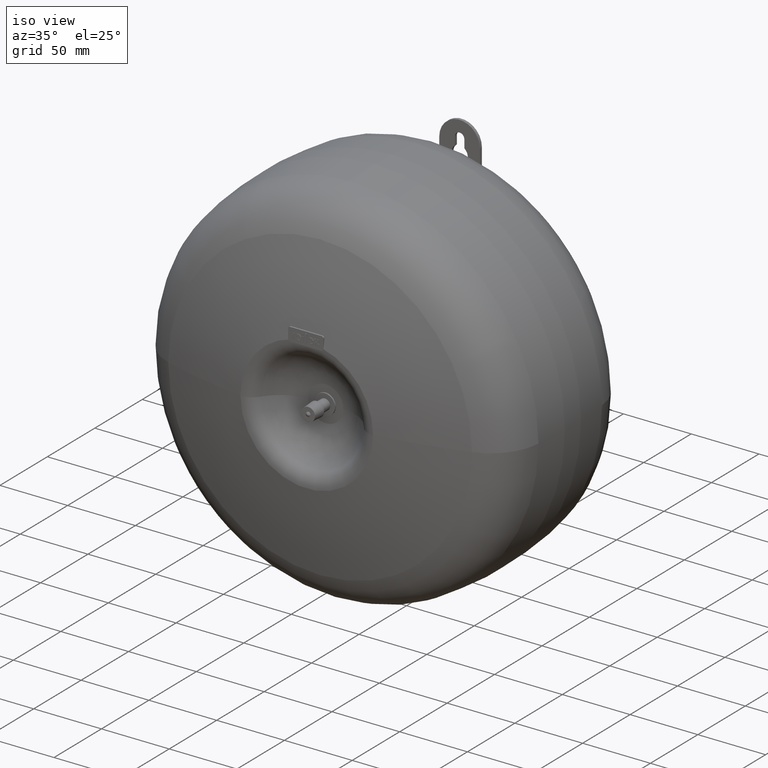
[diagram: clean part render]
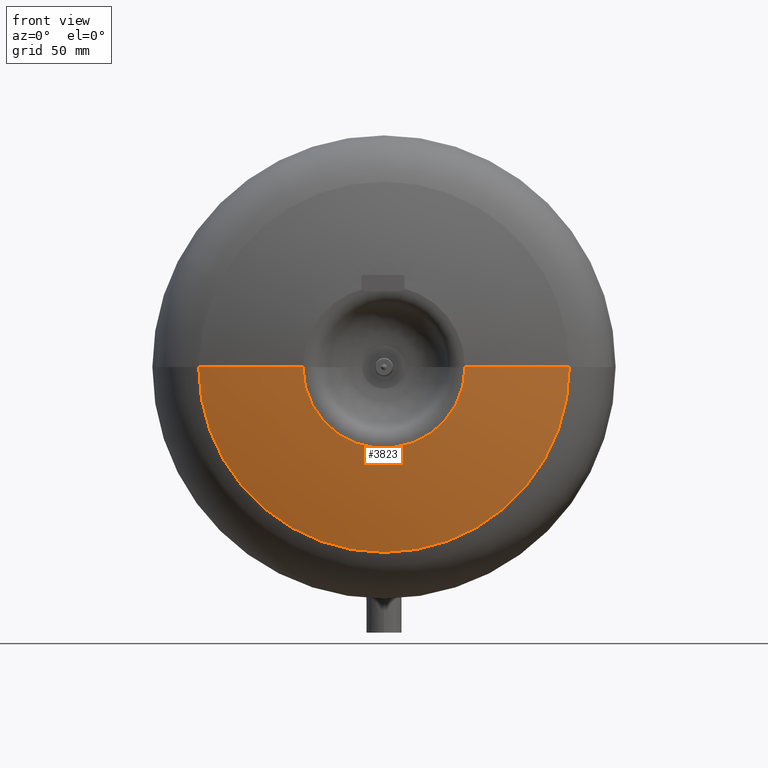
[diagram: tour spotlight — one face highlighted and labeled with its STEP entity id]
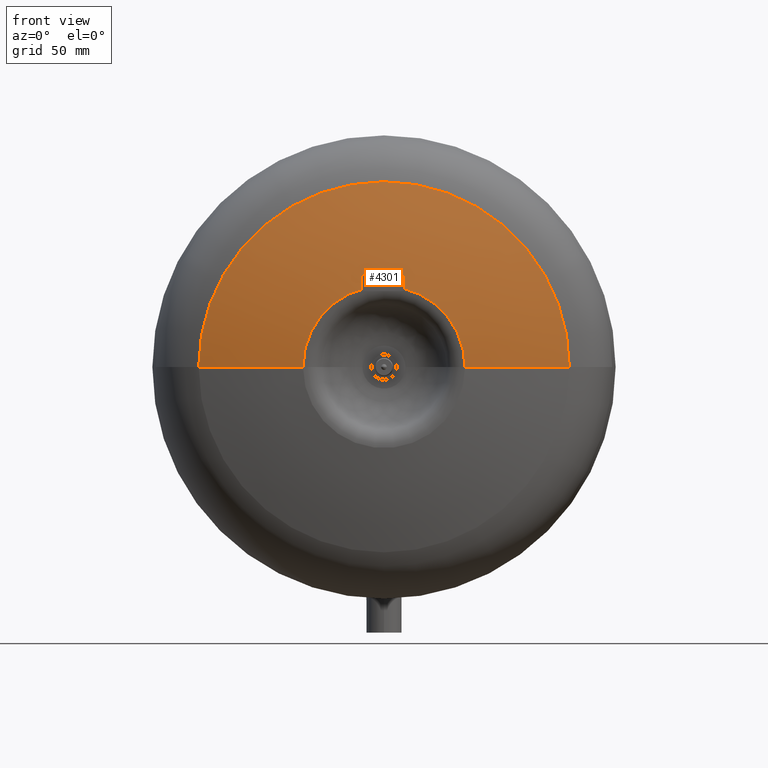
[diagram: tour spotlight — one face highlighted and labeled with its STEP entity id]
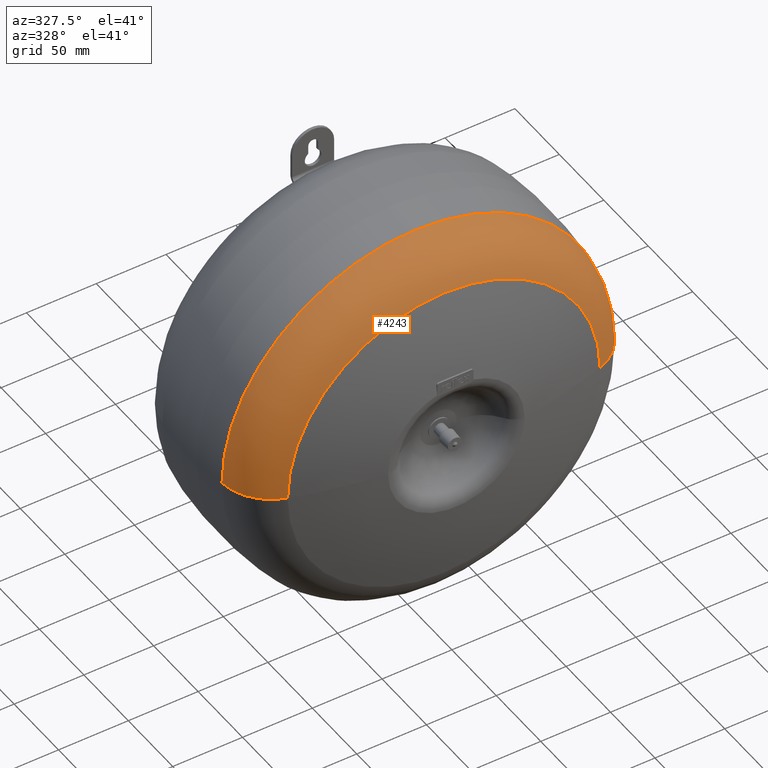
[diagram: tour spotlight — one face highlighted and labeled with its STEP entity id]
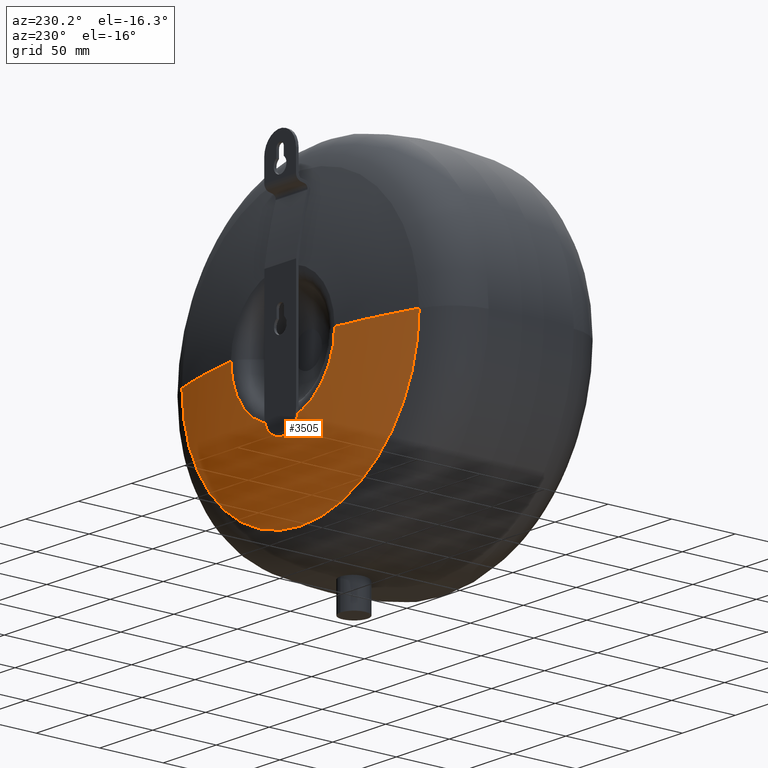
[diagram: tour spotlight — one face highlighted and labeled with its STEP entity id]
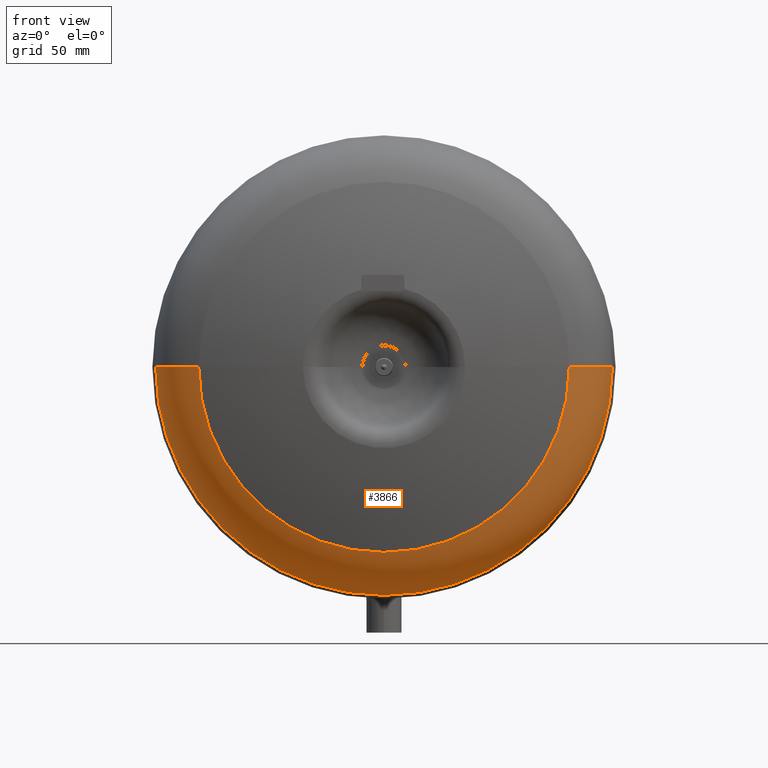
[diagram: tour spotlight — one face highlighted and labeled with its STEP entity id]
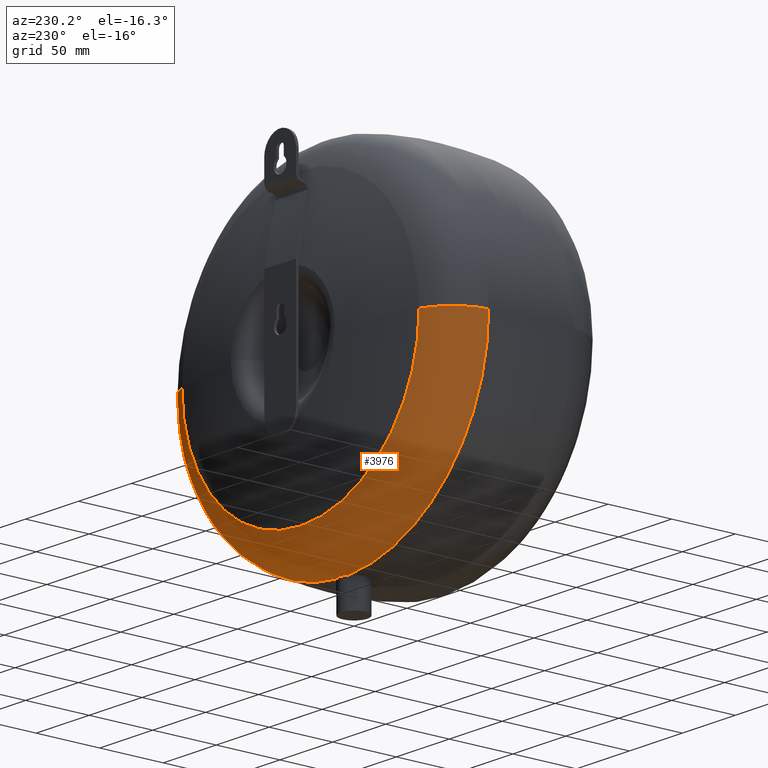
[diagram: tour spotlight — one face highlighted and labeled with its STEP entity id]
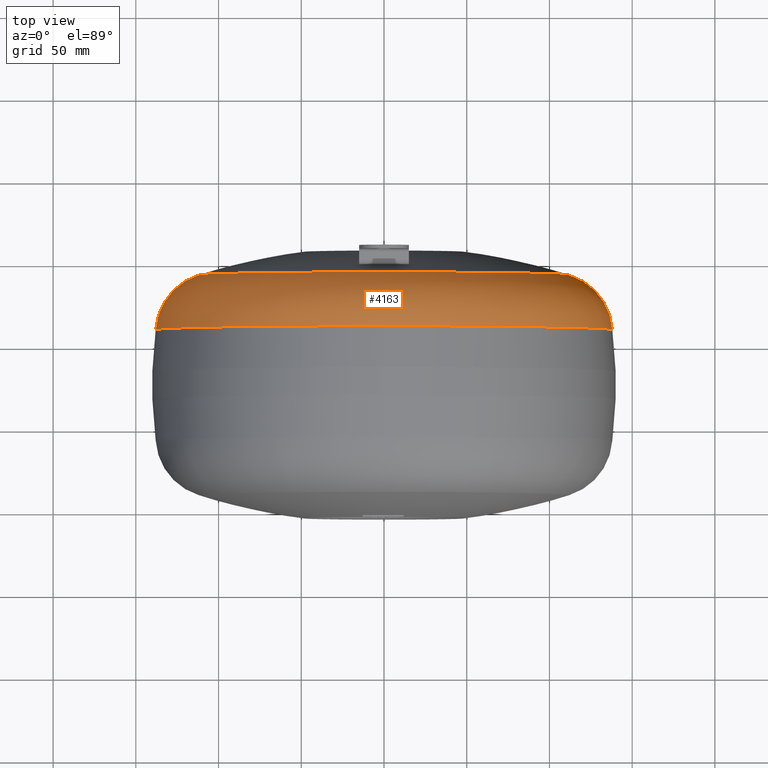
[diagram: tour spotlight — one face highlighted and labeled with its STEP entity id]
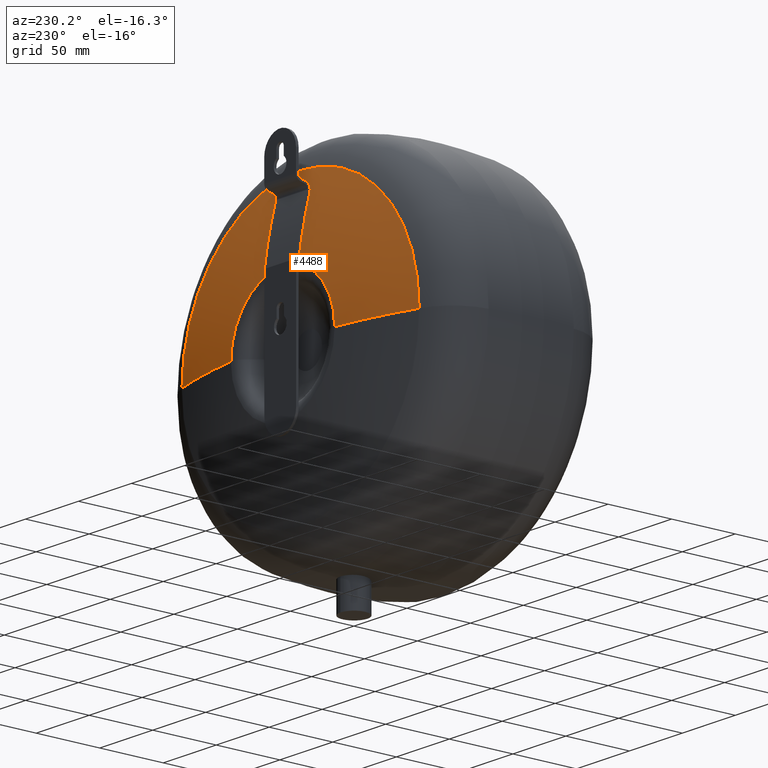
[diagram: tour spotlight — one face highlighted and labeled with its STEP entity id]
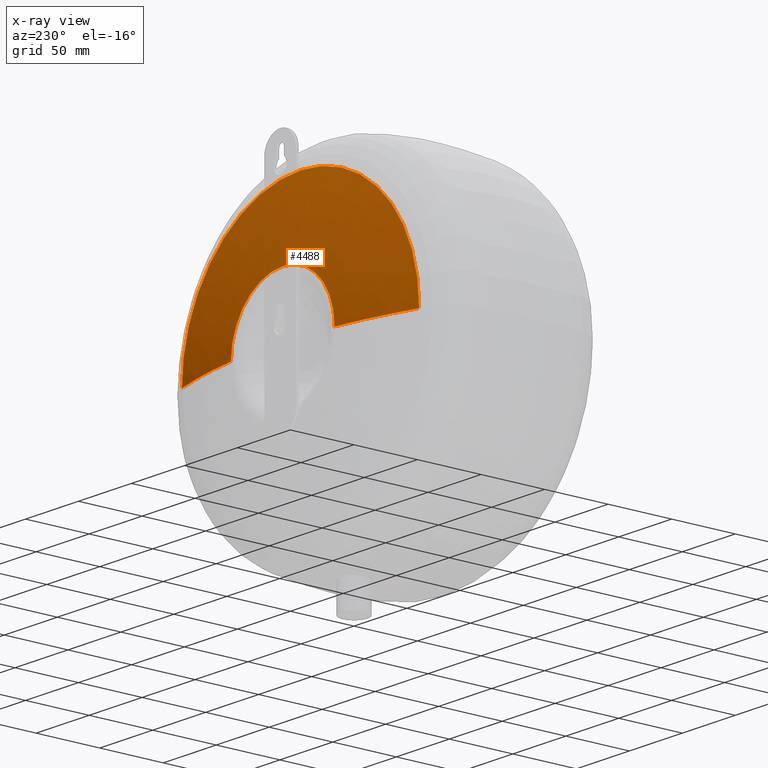
[diagram: x-ray of the same camera — body ghosted, this tour face saturated]
A machine part: a face-by-face anatomy tour. The part has 143 B-rep faces; the first image is the clean iso view, then the 8 largest visible faces are spotlighted one at a time (largest first), each with its STEP entity span.

Face 1 — front view, entity #3823. In plain terms, the highlighted face is a freeform B-spline surface patch.
Definition (entity closure, byte-faithful):
#3725=CARTESIAN_POINT('',(49.000000000000085,-105.0,160.50000000000006));
#3726=VERTEX_POINT('',#3725);
#3741=CARTESIAN_POINT('',(-49.000000000000099,-104.99999999999997,160.50000000000006));
#3742=VERTEX_POINT('',#3741);
#3750=CARTESIAN_POINT('',(-7.105427E-015,-104.99999999999997,160.50000000000006));
#3751=DIRECTION('',(0.0,-1.0,0.0));
#3752=DIRECTION('',(0.0,0.0,1.0));
#3753=AXIS2_PLACEMENT_3D('',#3750,#3751,#3752);
#3754=CIRCLE('',#3753,49.000000000000092);
#3755=EDGE_CURVE('',#3742,#3726,#3754,.T.);
#3760=CARTESIAN_POINT('',(-112.00000000000004,-90.999999999999886,160.50000000000009));
#3761=CARTESIAN_POINT('',(-81.112818320128028,-100.7576824405777,160.50000000000006));
#3762=CARTESIAN_POINT('',(-48.999999999999275,-105.0,160.50000000000006));
#3763=CARTESIAN_POINT('',(-111.99999999999999,-90.999999999999886,272.50000000000006));
#3764=CARTESIAN_POINT('',(-81.112818320128014,-100.7576824405777,241.61281832012804));
#3765=CARTESIAN_POINT('',(-48.999999999999254,-105.0,209.49999999999932));
#3766=CARTESIAN_POINT('',(2.045657E-014,-90.999999999999886,272.50000000000011));
#3767=CARTESIAN_POINT('',(-9.757536E-015,-100.7576824405777,241.61281832012807));
#3768=CARTESIAN_POINT('',(-1.053681E-014,-105.0,209.49999999999932));
#3769=CARTESIAN_POINT('',(112.00000000000001,-90.999999999999886,272.50000000000006));
#3770=CARTESIAN_POINT('',(81.112818320127985,-100.7576824405777,241.61281832012804));
#3771=CARTESIAN_POINT('',(48.999999999999247,-105.0,209.49999999999932));
#3772=CARTESIAN_POINT('',(112.00000000000001,-90.999999999999886,160.50000000000003));
#3773=CARTESIAN_POINT('',(81.112818320128,-100.7576824405777,160.50000000000006));
#3774=CARTESIAN_POINT('',(48.999999999999261,-105.0,160.50000000000006));
#3775=CARTESIAN_POINT('',(111.99999999999996,-90.999999999999886,48.500000000000028));
#3776=CARTESIAN_POINT('',(81.112818320127985,-100.7576824405777,79.387181679872057));
#3777=CARTESIAN_POINT('',(48.999999999999247,-105.0,111.5000000000008));
#3778=CARTESIAN_POINT('',(-3.638685E-014,-90.999999999999886,48.500000000000028));
#3779=CARTESIAN_POINT('',(-9.757536E-015,-100.7576824405777,79.387181679872043));
#3780=CARTESIAN_POINT('',(-1.053681E-014,-105.0,111.5000000000008));
#3781=CARTESIAN_POINT('',(-112.00000000000003,-90.999999999999886,48.500000000000085));
#3782=CARTESIAN_POINT('',(-81.112818320128014,-100.7576824405777,79.387181679872057));
#3783=CARTESIAN_POINT('',(-48.999999999999254,-105.0,111.5000000000008));
#3784=CARTESIAN_POINT('',(-112.00000000000004,-90.999999999999886,160.50000000000009));
#3785=CARTESIAN_POINT('',(-81.112818320128028,-100.7576824405777,160.50000000000006));
#3786=CARTESIAN_POINT('',(-48.999999999999275,-105.0,160.50000000000006));
#3794=(BOUNDED_SURFACE()B_SPLINE_SURFACE(2,2,((#3760,#3763,#3766,#3769,#3772,#3775,#3778,#3781,#3784),(#3761,#3764,#3767,#3770,#3773,#3776,#3779,#3782,#3785),(#3762,#3765,#3768,#3771,#3774,#3777,#3780,#3783,#3786)),.UNSPECIFIED.,.F.,.T.,.U.)B_SPLINE_SURFACE_WITH_KNOTS((3,3),(3,2,2,2,3),(1.264804539362947,1.439450222478965),(0.0,1.570796326794897,3.141592653589793,4.71238898038469,6.283185307179586),.UNSPECIFIED.)GEOMETRIC_REPRESENTATION_ITEM()RATIONAL_B_SPLINE_SURFACE(((1.0,0.707106781186548,1.0,0.707106781186548,1.0,0.707106781186548,1.0,0.707106781186548,1.0),(0.99618978275852,0.704412550737303,0.99618978275852,0.704412550737303,0.99618978275852,0.704412550737303,0.99618978275852,0.704412550737303,0.99618978275852),(1.0,0.707106781186548,1.0,0.707106781186548,1.0,0.707106781186548,1.0,0.707106781186548,1.0)))REPRESENTATION_ITEM('')SURFACE());
#3795=CARTESIAN_POINT('',(112.00000000000009,-90.999999999999986,160.50000000000006));
#3796=VERTEX_POINT('',#3795);
#3797=CARTESIAN_POINT('',(0.541554910213108,261.81300290404124,160.50000000000006));
#3798=DIRECTION('',(0.0,0.0,1.0));
#3799=DIRECTION('',(1.0,0.0,0.0));
#3800=AXIS2_PLACEMENT_3D('',#3797,#3798,#3799);
#3801=CIRCLE('',#3800,370.0);
#3802=EDGE_CURVE('',#3726,#3796,#3801,.T.);
#3803=ORIENTED_EDGE('',*,*,#3802,.F.);
#3804=ORIENTED_EDGE('',*,*,#3755,.F.);
#3805=CARTESIAN_POINT('',(-112.00000000000011,-90.999999999999957,160.50000000000006));
#3806=VERTEX_POINT('',#3805);
#3807=CARTESIAN_POINT('',(-0.541554910212994,261.81300290404124,160.50000000000006));
#3808=DIRECTION('',(0.0,0.0,-1.0));
#3809=DIRECTION('',(-1.0,0.0,0.0));
#3810=AXIS2_PLACEMENT_3D('',#3807,#3808,#3809);
#3811=CIRCLE('',#3810,370.0);
#3812=EDGE_CURVE('',#3742,#3806,#3811,.T.);
#3813=ORIENTED_EDGE('',*,*,#3812,.T.);
#3814=CARTESIAN_POINT('',(-7.105427E-015,-90.999999999999972,160.50000000000006));
#3815=DIRECTION('',(0.0,-1.0,0.0));
#3816=DIRECTION('',(0.0,0.0,1.0));
#3817=AXIS2_PLACEMENT_3D('',#3814,#3815,#3816);
#3818=CIRCLE('',#3817,112.0000000000001);
#3819=EDGE_CURVE('',#3806,#3796,#3818,.T.);
#3820=ORIENTED_EDGE('',*,*,#3819,.T.);
#3821=EDGE_LOOP('',(#3803,#3804,#3813,#3820));
#3822=FACE_OUTER_BOUND('',#3821,.T.);
#3823=ADVANCED_FACE('',(#3822),#3794,.T.);

Face 2 — front view, entity #4301. In plain terms, the highlighted face is a freeform B-spline surface patch.
Definition (entity closure, byte-faithful):
#3725=CARTESIAN_POINT('',(49.000000000000085,-105.0,160.50000000000006));
#3726=VERTEX_POINT('',#3725);
#3741=CARTESIAN_POINT('',(-49.000000000000099,-104.99999999999997,160.50000000000006));
#3742=VERTEX_POINT('',#3741);
#3795=CARTESIAN_POINT('',(112.00000000000009,-90.999999999999986,160.50000000000006));
#3796=VERTEX_POINT('',#3795);
#3797=CARTESIAN_POINT('',(0.541554910213108,261.81300290404124,160.50000000000006));
#3798=DIRECTION('',(0.0,0.0,1.0));
#3799=DIRECTION('',(1.0,0.0,0.0));
#3800=AXIS2_PLACEMENT_3D('',#3797,#3798,#3799);
#3801=CIRCLE('',#3800,370.0);
#3802=EDGE_CURVE('',#3726,#3796,#3801,.T.);
#3805=CARTESIAN_POINT('',(-112.00000000000011,-90.999999999999957,160.50000000000006));
#3806=VERTEX_POINT('',#3805);
#3807=CARTESIAN_POINT('',(-0.541554910212994,261.81300290404124,160.50000000000006));
#3808=DIRECTION('',(0.0,0.0,-1.0));
#3809=DIRECTION('',(-1.0,0.0,0.0));
#3810=AXIS2_PLACEMENT_3D('',#3807,#3808,#3809);
#3811=CIRCLE('',#3810,370.0);
#3812=EDGE_CURVE('',#3742,#3806,#3811,.T.);
#4225=CARTESIAN_POINT('',(0.0,-90.999999999999972,272.50000000000017));
#4226=VERTEX_POINT('',#4225);
#4227=CARTESIAN_POINT('',(-7.105427E-015,-90.999999999999972,160.50000000000006));
#4228=DIRECTION('',(0.0,-1.0,0.0));
#4229=DIRECTION('',(0.0,0.0,1.0));
#4230=AXIS2_PLACEMENT_3D('',#4227,#4228,#4229);
#4231=CIRCLE('',#4230,112.0000000000001);
#4232=EDGE_CURVE('',#4226,#3806,#4231,.T.);
#4234=CARTESIAN_POINT('',(-7.105427E-015,-90.999999999999972,160.50000000000006));
#4235=DIRECTION('',(0.0,-1.0,0.0));
#4236=DIRECTION('',(0.0,0.0,1.0));
#4237=AXIS2_PLACEMENT_3D('',#4234,#4235,#4236);
#4238=CIRCLE('',#4237,112.0000000000001);
#4239=EDGE_CURVE('',#3796,#4226,#4238,.T.);
#4244=CARTESIAN_POINT('',(-112.00000000000004,-90.999999999999886,160.50000000000009));
#4245=CARTESIAN_POINT('',(-81.112818320128028,-100.7576824405777,160.50000000000006));
#4246=CARTESIAN_POINT('',(-48.999999999999275,-105.0,160.50000000000006));
#4247=CARTESIAN_POINT('',(-111.99999999999999,-90.999999999999886,272.50000000000006));
#4248=CARTESIAN_POINT('',(-81.112818320128014,-100.7576824405777,241.61281832012804));
#4249=CARTESIAN_POINT('',(-48.999999999999254,-105.0,209.49999999999932));
#4250=CARTESIAN_POINT('',(2.045657E-014,-90.999999999999886,272.50000000000011));
#4251=CARTESIAN_POINT('',(-9.757536E-015,-100.7576824405777,241.61281832012807));
#4252=CARTESIAN_POINT('',(-1.053681E-014,-105.0,209.49999999999932));
#4253=CARTESIAN_POINT('',(112.00000000000001,-90.999999999999886,272.50000000000006));
#4254=CARTESIAN_POINT('',(81.112818320127985,-100.7576824405777,241.61281832012804));
#4255=CARTESIAN_POINT('',(48.999999999999247,-105.0,209.49999999999932));
#4256=CARTESIAN_POINT('',(112.00000000000001,-90.999999999999886,160.50000000000003));
#4257=CARTESIAN_POINT('',(81.112818320128,-100.7576824405777,160.50000000000006));
#4258=CARTESIAN_POINT('',(48.999999999999261,-105.0,160.50000000000006));
#4259=CARTESIAN_POINT('',(111.99999999999996,-90.999999999999886,48.500000000000028));
#4260=CARTESIAN_POINT('',(81.112818320127985,-100.7576824405777,79.387181679872057));
#4261=CARTESIAN_POINT('',(48.999999999999247,-105.0,111.5000000000008));
#4262=CARTESIAN_POINT('',(-3.638685E-014,-90.999999999999886,48.500000000000028));
#4263=CARTESIAN_POINT('',(-9.757536E-015,-100.7576824405777,79.387181679872043));
#4264=CARTESIAN_POINT('',(-1.053681E-014,-105.0,111.5000000000008));
#4265=CARTESIAN_POINT('',(-112.00000000000003,-90.999999999999886,48.500000000000085));
#4266=CARTESIAN_POINT('',(-81.112818320128014,-100.7576824405777,79.387181679872057));
#4267=CARTESIAN_POINT('',(-48.999999999999254,-105.0,111.5000000000008));
#4268=CARTESIAN_POINT('',(-112.00000000000004,-90.999999999999886,160.50000000000009));
#4269=CARTESIAN_POINT('',(-81.112818320128028,-100.7576824405777,160.50000000000006));
#4270=CARTESIAN_POINT('',(-48.999999999999275,-105.0,160.50000000000006));
#4278=(BOUNDED_SURFACE()B_SPLINE_SURFACE(2,2,((#4244,#4247,#4250,#4253,#4256,#4259,#4262,#4265,#4268),(#4245,#4248,#4251,#4254,#4257,#4260,#4263,#4266,#4269),(#4246,#4249,#4252,#4255,#4258,#4261,#4264,#4267,#4270)),.UNSPECIFIED.,.F.,.T.,.U.)B_SPLINE_SURFACE_WITH_KNOTS((3,3),(3,2,2,2,3),(1.264804539362947,1.439450222478965),(0.0,1.570796326794897,3.141592653589793,4.71238898038469,6.283185307179586),.UNSPECIFIED.)GEOMETRIC_REPRESENTATION_ITEM()RATIONAL_B_SPLINE_SURFACE(((1.0,0.707106781186548,1.0,0.707106781186548,1.0,0.707106781186548,1.0,0.707106781186548,1.0),(0.99618978275852,0.704412550737303,0.99618978275852,0.704412550737303,0.99618978275852,0.704412550737303,0.99618978275852,0.704412550737303,0.99618978275852),(1.0,0.707106781186548,1.0,0.707106781186548,1.0,0.707106781186548,1.0,0.707106781186548,1.0)))REPRESENTATION_ITEM('')SURFACE());
#4279=ORIENTED_EDGE('',*,*,#3802,.T.);
#4280=ORIENTED_EDGE('',*,*,#4239,.T.);
#4281=ORIENTED_EDGE('',*,*,#4232,.T.);
#4282=ORIENTED_EDGE('',*,*,#3812,.F.);
#4283=CARTESIAN_POINT('',(-7.105427E-015,-104.99999999999997,209.50000000000014));
#4284=VERTEX_POINT('',#4283);
#4285=CARTESIAN_POINT('',(-7.105427E-015,-104.99999999999997,160.50000000000006));
#4286=DIRECTION('',(0.0,-1.0,0.0));
#4287=DIRECTION('',(0.0,0.0,1.0));
#4288=AXIS2_PLACEMENT_3D('',#4285,#4286,#4287);
#4289=CIRCLE('',#4288,49.000000000000092);
#4290=EDGE_CURVE('',#4284,#3742,#4289,.T.);
#4291=ORIENTED_EDGE('',*,*,#4290,.F.);
#4292=CARTESIAN_POINT('',(-7.105427E-015,-104.99999999999997,160.50000000000006));
#4293=DIRECTION('',(0.0,-1.0,0.0));
#4294=DIRECTION('',(0.0,0.0,1.0));
#4295=AXIS2_PLACEMENT_3D('',#4292,#4293,#4294);
#4296=CIRCLE('',#4295,49.000000000000092);
#4297=EDGE_CURVE('',#3726,#4284,#4296,.T.);
#4298=ORIENTED_EDGE('',*,*,#4297,.F.);
#4299=EDGE_LOOP('',(#4279,#4280,#4281,#4282,#4291,#4298));
#4300=FACE_OUTER_BOUND('',#4299,.T.);
#4301=ADVANCED_FACE('',(#4300),#4278,.T.);

Face 3 — auxiliary view, entity #4243. In plain terms, the highlighted toroidal blend (fillet) surface has major radius 101.075 mm and minor (blend) radius 37 mm.
Definition (entity closure, byte-faithful):
#3795=CARTESIAN_POINT('',(112.00000000000009,-90.999999999999986,160.50000000000006));
#3796=VERTEX_POINT('',#3795);
#3805=CARTESIAN_POINT('',(-112.00000000000011,-90.999999999999957,160.50000000000006));
#3806=VERTEX_POINT('',#3805);
#3829=CARTESIAN_POINT('',(138.00000000000011,-58.000000000000007,160.50000000000006));
#3830=VERTEX_POINT('',#3829);
#3831=CARTESIAN_POINT('',(101.07471793660466,-55.649777768233882,160.50000000000006));
#3832=DIRECTION('',(0.0,0.0,1.0));
#3833=DIRECTION('',(1.0,0.0,0.0));
#3834=AXIS2_PLACEMENT_3D('',#3831,#3832,#3833);
#3835=CIRCLE('',#3834,37.000000000000007);
#3836=EDGE_CURVE('',#3796,#3830,#3835,.T.);
#3839=CARTESIAN_POINT('',(-138.00000000000011,-57.999999999999936,160.50000000000006));
#3840=VERTEX_POINT('',#3839);
#3841=CARTESIAN_POINT('',(-101.07471793660466,-55.649777768233839,160.50000000000006));
#3842=DIRECTION('',(0.0,0.0,-1.0));
#3843=DIRECTION('',(-1.0,0.0,0.0));
#3844=AXIS2_PLACEMENT_3D('',#3841,#3842,#3843);
#3845=CIRCLE('',#3844,37.000000000000007);
#3846=EDGE_CURVE('',#3806,#3840,#3845,.T.);
#3872=CARTESIAN_POINT('',(7.105427E-015,-57.999999999999972,298.50000000000017));
#3873=VERTEX_POINT('',#3872);
#3880=CARTESIAN_POINT('',(0.0,-57.999999999999972,160.50000000000006));
#3881=DIRECTION('',(0.0,-1.0,0.0));
#3882=DIRECTION('',(0.0,0.0,1.0));
#3883=AXIS2_PLACEMENT_3D('',#3880,#3881,#3882);
#3884=CIRCLE('',#3883,138.00000000000011);
#3885=EDGE_CURVE('',#3830,#3873,#3884,.T.);
#4206=CARTESIAN_POINT('',(0.0,-57.999999999999972,160.50000000000006));
#4207=DIRECTION('',(0.0,-1.0,0.0));
#4208=DIRECTION('',(0.0,0.0,1.0));
#4209=AXIS2_PLACEMENT_3D('',#4206,#4207,#4208);
#4210=CIRCLE('',#4209,138.00000000000011);
#4211=EDGE_CURVE('',#3873,#3840,#4210,.T.);
#4216=CARTESIAN_POINT('',(0.0,-55.649777768233861,160.50000000000006));
#4217=DIRECTION('',(-1.836910E-016,-1.0,0.0));
#4218=DIRECTION('',(1.0,0.0,0.0));
#4219=AXIS2_PLACEMENT_3D('',#4216,#4217,#4218);
#4220=TOROIDAL_SURFACE('',#4219,101.07471793660466,37.000000000000007);
#4221=ORIENTED_EDGE('',*,*,#3836,.T.);
#4222=ORIENTED_EDGE('',*,*,#3885,.T.);
#4223=ORIENTED_EDGE('',*,*,#4211,.T.);
#4224=ORIENTED_EDGE('',*,*,#3846,.F.);
#4225=CARTESIAN_POINT('',(0.0,-90.999999999999972,272.50000000000017));
#4226=VERTEX_POINT('',#4225);
#4227=CARTESIAN_POINT('',(-7.105427E-015,-90.999999999999972,160.50000000000006));
#4228=DIRECTION('',(0.0,-1.0,0.0));
#4229=DIRECTION('',(0.0,0.0,1.0));
#4230=AXIS2_PLACEMENT_3D('',#4227,#4228,#4229);
#4231=CIRCLE('',#4230,112.0000000000001);
#4232=EDGE_CURVE('',#4226,#3806,#4231,.T.);
#4233=ORIENTED_EDGE('',*,*,#4232,.F.);
#4234=CARTESIAN_POINT('',(-7.105427E-015,-90.999999999999972,160.50000000000006));
#4235=DIRECTION('',(0.0,-1.0,0.0));
#4236=DIRECTION('',(0.0,0.0,1.0));
#4237=AXIS2_PLACEMENT_3D('',#4234,#4235,#4236);
#4238=CIRCLE('',#4237,112.0000000000001);
#4239=EDGE_CURVE('',#3796,#4226,#4238,.T.);
#4240=ORIENTED_EDGE('',*,*,#4239,.F.);
#4241=EDGE_LOOP('',(#4221,#4222,#4223,#4224,#4233,#4240));
#4242=FACE_OUTER_BOUND('',#4241,.T.);
#4243=ADVANCED_FACE('',(#4242),#4220,.T.);

Face 4 — auxiliary view, entity #3505. In plain terms, the highlighted face is a freeform B-spline surface patch.
Definition (entity closure, byte-faithful):
#3432=CARTESIAN_POINT('',(-48.999999999999275,56.000000000000057,160.50000000000006));
#3433=CARTESIAN_POINT('',(-81.112818320128198,51.757682440577724,160.50000000000006));
#3434=CARTESIAN_POINT('',(-112.00000000000004,41.999999999999943,160.50000000000009));
#3435=CARTESIAN_POINT('',(-48.999999999999254,56.000000000000057,209.49999999999935));
#3436=CARTESIAN_POINT('',(-81.112818320128184,51.757682440577724,241.61281832012827));
#3437=CARTESIAN_POINT('',(-111.99999999999999,41.999999999999943,272.50000000000011));
#3438=CARTESIAN_POINT('',(2.474767E-014,56.000000000000057,209.49999999999935));
#3439=CARTESIAN_POINT('',(2.396839E-014,51.757682440577753,241.61281832012827));
#3440=CARTESIAN_POINT('',(5.059770E-014,41.999999999999943,272.50000000000011));
#3441=CARTESIAN_POINT('',(48.999999999999304,56.000000000000057,209.49999999999935));
#3442=CARTESIAN_POINT('',(81.112818320128241,51.757682440577781,241.61281832012827));
#3443=CARTESIAN_POINT('',(112.0000000000001,41.999999999999943,272.50000000000011));
#3444=CARTESIAN_POINT('',(48.999999999999318,56.000000000000057,160.50000000000006));
#3445=CARTESIAN_POINT('',(81.112818320128255,51.757682440577781,160.50000000000006));
#3446=CARTESIAN_POINT('',(112.0000000000001,41.999999999999943,160.50000000000003));
#3447=CARTESIAN_POINT('',(48.999999999999304,56.000000000000057,111.50000000000077));
#3448=CARTESIAN_POINT('',(81.112818320128241,51.757682440577781,79.387181679871844));
#3449=CARTESIAN_POINT('',(112.00000000000003,41.999999999999943,48.499999999999986));
#3450=CARTESIAN_POINT('',(2.474767E-014,56.000000000000057,111.50000000000077));
#3451=CARTESIAN_POINT('',(2.396839E-014,51.757682440577753,79.38718167987183));
#3452=CARTESIAN_POINT('',(-6.245717E-015,41.999999999999943,48.499999999999986));
#3453=CARTESIAN_POINT('',(-48.999999999999254,56.000000000000057,111.50000000000077));
#3454=CARTESIAN_POINT('',(-81.112818320128184,51.757682440577724,79.387181679871844));
#3455=CARTESIAN_POINT('',(-112.00000000000003,41.999999999999943,48.50000000000005));
#3456=CARTESIAN_POINT('',(-48.999999999999275,56.000000000000057,160.50000000000006));
#3457=CARTESIAN_POINT('',(-81.112818320128198,51.757682440577724,160.50000000000006));
#3458=CARTESIAN_POINT('',(-112.00000000000004,41.999999999999943,160.50000000000009));
#3466=(BOUNDED_SURFACE()B_SPLINE_SURFACE(2,2,((#3432,#3435,#3438,#3441,#3444,#3447,#3450,#3453,#3456),(#3433,#3436,#3439,#3442,#3445,#3448,#3451,#3454,#3457),(#3434,#3437,#3440,#3443,#3446,#3449,#3452,#3455,#3458)),.UNSPECIFIED.,.F.,.T.,.U.)B_SPLINE_SURFACE_WITH_KNOTS((3,3),(3,2,2,2,3),(-1.439450222478965,-1.264804539362947),(0.0,1.570796326794897,3.141592653589793,4.71238898038469,6.283185307179586),.UNSPECIFIED.)GEOMETRIC_REPRESENTATION_ITEM()RATIONAL_B_SPLINE_SURFACE(((1.0,0.707106781186548,1.0,0.707106781186548,1.0,0.707106781186548,1.0,0.707106781186548,1.0),(0.996189782758514,0.704412550737299,0.996189782758514,0.704412550737299,0.996189782758514,0.704412550737299,0.996189782758514,0.704412550737299,0.996189782758514),(1.0,0.707106781186548,1.0,0.707106781186548,1.0,0.707106781186548,1.0,0.707106781186548,1.0)))REPRESENTATION_ITEM('')SURFACE());
#3467=CARTESIAN_POINT('',(112.00000000000003,42.0,160.50000000000006));
#3468=VERTEX_POINT('',#3467);
#3469=CARTESIAN_POINT('',(49.000000000000021,56.000000000000021,160.50000000000006));
#3470=VERTEX_POINT('',#3469);
#3471=CARTESIAN_POINT('',(0.541554910213026,-310.81300290404118,160.50000000000006));
#3472=DIRECTION('',(0.0,0.0,1.0));
#3473=DIRECTION('',(1.0,0.0,0.0));
#3474=AXIS2_PLACEMENT_3D('',#3471,#3472,#3473);
#3475=CIRCLE('',#3474,370.0);
#3476=EDGE_CURVE('',#3468,#3470,#3475,.T.);
#3477=ORIENTED_EDGE('',*,*,#3476,.F.);
#3478=CARTESIAN_POINT('',(-111.99999999999997,42.000000000000057,160.50000000000006));
#3479=VERTEX_POINT('',#3478);
#3480=CARTESIAN_POINT('',(2.131628E-014,42.000000000000028,160.50000000000006));
#3481=DIRECTION('',(0.0,-1.0,0.0));
#3482=DIRECTION('',(0.0,0.0,1.0));
#3483=AXIS2_PLACEMENT_3D('',#3480,#3481,#3482);
#3484=CIRCLE('',#3483,112.0);
#3485=EDGE_CURVE('',#3479,#3468,#3484,.T.);
#3486=ORIENTED_EDGE('',*,*,#3485,.F.);
#3487=CARTESIAN_POINT('',(-48.999999999999979,56.000000000000036,160.50000000000006));
#3488=VERTEX_POINT('',#3487);
#3489=CARTESIAN_POINT('',(-0.541554910213112,-310.81300290404118,160.50000000000006));
#3490=DIRECTION('',(0.0,0.0,-1.0));
#3491=DIRECTION('',(-1.0,0.0,0.0));
#3492=AXIS2_PLACEMENT_3D('',#3489,#3490,#3491);
#3493=CIRCLE('',#3492,370.0);
#3494=EDGE_CURVE('',#3479,#3488,#3493,.T.);
#3495=ORIENTED_EDGE('',*,*,#3494,.T.);
#3496=CARTESIAN_POINT('',(2.131628E-014,56.000000000000028,160.50000000000006));
#3497=DIRECTION('',(0.0,-1.0,0.0));
#3498=DIRECTION('',(0.0,0.0,1.0));
#3499=AXIS2_PLACEMENT_3D('',#3496,#3497,#3498);
#3500=CIRCLE('',#3499,49.0);
#3501=EDGE_CURVE('',#3488,#3470,#3500,.T.);
#3502=ORIENTED_EDGE('',*,*,#3501,.T.);
#3503=EDGE_LOOP('',(#3477,#3486,#3495,#3502));
#3504=FACE_OUTER_BOUND('',#3503,.T.);
#3505=ADVANCED_FACE('',(#3504),#3466,.T.);

Face 5 — front view, entity #3866. In plain terms, the highlighted toroidal blend (fillet) surface has major radius 101.075 mm and minor (blend) radius 37 mm.
Definition (entity closure, byte-faithful):
#3795=CARTESIAN_POINT('',(112.00000000000009,-90.999999999999986,160.50000000000006));
#3796=VERTEX_POINT('',#3795);
#3805=CARTESIAN_POINT('',(-112.00000000000011,-90.999999999999957,160.50000000000006));
#3806=VERTEX_POINT('',#3805);
#3814=CARTESIAN_POINT('',(-7.105427E-015,-90.999999999999972,160.50000000000006));
#3815=DIRECTION('',(0.0,-1.0,0.0));
#3816=DIRECTION('',(0.0,0.0,1.0));
#3817=AXIS2_PLACEMENT_3D('',#3814,#3815,#3816);
#3818=CIRCLE('',#3817,112.0000000000001);
#3819=EDGE_CURVE('',#3806,#3796,#3818,.T.);
#3824=CARTESIAN_POINT('',(0.0,-55.649777768233861,160.50000000000006));
#3825=DIRECTION('',(-1.836910E-016,-1.0,0.0));
#3826=DIRECTION('',(1.0,0.0,0.0));
#3827=AXIS2_PLACEMENT_3D('',#3824,#3825,#3826);
#3828=TOROIDAL_SURFACE('',#3827,101.07471793660466,37.000000000000007);
#3829=CARTESIAN_POINT('',(138.00000000000011,-58.000000000000007,160.50000000000006));
#3830=VERTEX_POINT('',#3829);
#3831=CARTESIAN_POINT('',(101.07471793660466,-55.649777768233882,160.50000000000006));
#3832=DIRECTION('',(0.0,0.0,1.0));
#3833=DIRECTION('',(1.0,0.0,0.0));
#3834=AXIS2_PLACEMENT_3D('',#3831,#3832,#3833);
#3835=CIRCLE('',#3834,37.000000000000007);
#3836=EDGE_CURVE('',#3796,#3830,#3835,.T.);
#3837=ORIENTED_EDGE('',*,*,#3836,.F.);
#3838=ORIENTED_EDGE('',*,*,#3819,.F.);
#3839=CARTESIAN_POINT('',(-138.00000000000011,-57.999999999999936,160.50000000000006));
#3840=VERTEX_POINT('',#3839);
#3841=CARTESIAN_POINT('',(-101.07471793660466,-55.649777768233839,160.50000000000006));
#3842=DIRECTION('',(0.0,0.0,-1.0));
#3843=DIRECTION('',(-1.0,0.0,0.0));
#3844=AXIS2_PLACEMENT_3D('',#3841,#3842,#3843);
#3845=CIRCLE('',#3844,37.000000000000007);
#3846=EDGE_CURVE('',#3806,#3840,#3845,.T.);
#3847=ORIENTED_EDGE('',*,*,#3846,.T.);
#3848=CARTESIAN_POINT('',(6.153647E-015,-57.999999999999972,22.499999999999943));
#3849=VERTEX_POINT('',#3848);
#3850=CARTESIAN_POINT('',(0.0,-57.999999999999972,160.50000000000006));
#3851=DIRECTION('',(0.0,-1.0,0.0));
#3852=DIRECTION('',(0.0,0.0,1.0));
#3853=AXIS2_PLACEMENT_3D('',#3850,#3851,#3852);
#3854=CIRCLE('',#3853,138.00000000000011);
#3855=EDGE_CURVE('',#3840,#3849,#3854,.T.);
#3856=ORIENTED_EDGE('',*,*,#3855,.T.);
#3857=CARTESIAN_POINT('',(0.0,-57.999999999999972,160.50000000000006));
#3858=DIRECTION('',(0.0,-1.0,0.0));
#3859=DIRECTION('',(0.0,0.0,1.0));
#3860=AXIS2_PLACEMENT_3D('',#3857,#3858,#3859);
#3861=CIRCLE('',#3860,138.00000000000011);
#3862=EDGE_CURVE('',#3849,#3830,#3861,.T.);
#3863=ORIENTED_EDGE('',*,*,#3862,.T.);
#3864=EDGE_LOOP('',(#3837,#3838,#3847,#3856,#3863));
#3865=FACE_OUTER_BOUND('',#3864,.T.);
#3866=ADVANCED_FACE('',(#3865),#3828,.T.);

Face 6 — auxiliary view, entity #3976. In plain terms, the highlighted toroidal blend (fillet) surface has major radius 101.075 mm and minor (blend) radius 37 mm.
Definition (entity closure, byte-faithful):
#3467=CARTESIAN_POINT('',(112.00000000000003,42.0,160.50000000000006));
#3468=VERTEX_POINT('',#3467);
#3478=CARTESIAN_POINT('',(-111.99999999999997,42.000000000000057,160.50000000000006));
#3479=VERTEX_POINT('',#3478);
#3480=CARTESIAN_POINT('',(2.131628E-014,42.000000000000028,160.50000000000006));
#3481=DIRECTION('',(0.0,-1.0,0.0));
#3482=DIRECTION('',(0.0,0.0,1.0));
#3483=AXIS2_PLACEMENT_3D('',#3480,#3481,#3482);
#3484=CIRCLE('',#3483,112.0);
#3485=EDGE_CURVE('',#3479,#3468,#3484,.T.);
#3898=CARTESIAN_POINT('',(1.421085E-014,6.649777768233918,160.50000000000006));
#3899=DIRECTION('',(-1.836910E-016,-1.0,0.0));
#3900=DIRECTION('',(1.0,0.0,0.0));
#3901=AXIS2_PLACEMENT_3D('',#3898,#3899,#3900);
#3902=TOROIDAL_SURFACE('',#3901,101.0747179366046,37.0);
#3903=CARTESIAN_POINT('',(138.00000000000006,9.000000000000004,160.50000000000006));
#3904=VERTEX_POINT('',#3903);
#3905=CARTESIAN_POINT('',(101.07471793660461,6.649777768233899,160.50000000000006));
#3906=DIRECTION('',(0.0,0.0,1.0));
#3907=DIRECTION('',(1.0,0.0,0.0));
#3908=AXIS2_PLACEMENT_3D('',#3905,#3906,#3907);
#3909=CIRCLE('',#3908,37.0);
#3910=EDGE_CURVE('',#3904,#3468,#3909,.T.);
#3911=ORIENTED_EDGE('',*,*,#3910,.F.);
#3912=CARTESIAN_POINT('',(5.694075868830304,9.000000000000028,22.617522868204873));
#3913=VERTEX_POINT('',#3912);
#3914=CARTESIAN_POINT('',(1.421085E-014,9.000000000000028,160.50000000000006));
#3915=DIRECTION('',(0.0,-1.0,0.0));
#3916=DIRECTION('',(0.0,0.0,1.0));
#3917=AXIS2_PLACEMENT_3D('',#3914,#3915,#3916);
#3918=CIRCLE('',#3917,138.00000000000006);
#3919=EDGE_CURVE('',#3913,#3904,#3918,.T.);
#3920=ORIENTED_EDGE('',*,*,#3919,.F.);
#3921=CARTESIAN_POINT('',(2.373270E-015,10.65,22.642157915268985));
#3922=VERTEX_POINT('',#3921);
#3923=CARTESIAN_POINT('',(5.69407586883068,9.000000000000028,22.617522868204929));
#3924=CARTESIAN_POINT('',(5.178700288528283,9.326065295020527,22.617010724609401));
#3925=CARTESIAN_POINT('',(4.636258854907617,9.607265092987745,22.619703816705169));
#3926=CARTESIAN_POINT('',(3.476330267134273,10.087332287669824,22.627012364018697));
#3927=CARTESIAN_POINT('',(2.85870500570249,10.279444621007286,22.63168630490938));
#3928=CARTESIAN_POINT('',(1.841075016546462,10.497098627494694,22.637508774831645));
#3929=CARTESIAN_POINT('',(1.450372515722798,10.558175104492278,22.639335130620054));
#3930=CARTESIAN_POINT('',(0.859213180165384,10.617148017907539,22.641130094872665));
#3931=CARTESIAN_POINT('',(0.660736047817522,10.631345517556127,22.641573094125874));
#3932=CARTESIAN_POINT('',(0.339216405065855,10.64530557580062,22.642009985706267));
#3933=CARTESIAN_POINT('',(0.21637289279667,10.648510758338006,22.64211101766611));
#3934=CARTESIAN_POINT('',(0.062334534104284,10.649863184390558,22.642153605275041));
#3935=CARTESIAN_POINT('',(0.031167145428338,10.650000000000002,22.642157915268989));
#3936=CARTESIAN_POINT('',(2.126011E-015,10.650000000000002,22.642157915268989));
#3937=B_SPLINE_CURVE_WITH_KNOTS('',3,(#3923,#3924,#3925,#3926,#3927,#3928,#3929,#3930,#3931,#3932,#3933,#3934,#3935,#3936),.UNSPECIFIED.,.F.,.U.,(4,2,2,2,2,2,4),(-1.202210346474159,-1.019261576626168,-0.825629735467774,-0.707099220300471,-0.647422558150506,-0.610564152621812,-0.60121491298339),.UNSPECIFIED.);
#3938=EDGE_CURVE('',#3913,#3922,#3937,.T.);
#3939=ORIENTED_EDGE('',*,*,#3938,.T.);
#3940=CARTESIAN_POINT('',(-5.694075868830296,9.000000000000028,22.617522868204873));
#3941=VERTEX_POINT('',#3940);
#3942=CARTESIAN_POINT('',(2.126011E-015,10.650000000000002,22.642157915268989));
#3943=CARTESIAN_POINT('',(-0.080471226281663,10.650000000000002,22.642157915268989));
#3944=CARTESIAN_POINT('',(-0.160940830993085,10.649087941876104,22.642129162029857));
#3945=CARTESIAN_POINT('',(-0.384500295253773,10.644019430161592,22.641969793486226));
#3946=CARTESIAN_POINT('',(-0.527526817750946,10.63789008646873,22.641777136826192));
#3947=CARTESIAN_POINT('',(-0.952377164734905,10.611093859117119,22.640944524503055));
#3948=CARTESIAN_POINT('',(-1.233545641887332,10.582093318434403,22.640049249332407));
#3949=CARTESIAN_POINT('',(-2.417834094479908,10.412096425090823,22.635065083696787));
#3950=CARTESIAN_POINT('',(-3.301962917216137,10.166343521618188,22.628012608250117));
#3951=CARTESIAN_POINT('',(-4.68188228413829,9.58351368538473,22.619486230610534));
#3952=CARTESIAN_POINT('',(-5.20041391055743,9.312327627107038,22.617032302062569));
#3953=CARTESIAN_POINT('',(-5.694075868830659,9.000000000000028,22.617522868204929));
#3954=B_SPLINE_CURVE_WITH_KNOTS('',3,(#3942,#3943,#3944,#3945,#3946,#3947,#3948,#3949,#3950,#3951,#3952,#3953),.UNSPECIFIED.,.F.,.U.,(4,2,2,2,2,4),(-0.60121491298339,-0.577075879133311,-0.534138016534265,-0.449382857453434,-0.175250056981459,0.0),.UNSPECIFIED.);
#3955=EDGE_CURVE('',#3922,#3941,#3954,.T.);
#3956=ORIENTED_EDGE('',*,*,#3955,.T.);
#3957=CARTESIAN_POINT('',(-138.00000000000006,9.000000000000053,160.50000000000006));
#3958=VERTEX_POINT('',#3957);
#3959=CARTESIAN_POINT('',(1.421085E-014,9.000000000000028,160.50000000000006));
#3960=DIRECTION('',(0.0,-1.0,0.0));
#3961=DIRECTION('',(0.0,0.0,1.0));
#3962=AXIS2_PLACEMENT_3D('',#3959,#3960,#3961);
#3963=CIRCLE('',#3962,138.00000000000006);
#3964=EDGE_CURVE('',#3958,#3941,#3963,.T.);
#3965=ORIENTED_EDGE('',*,*,#3964,.F.);
#3966=CARTESIAN_POINT('',(-101.07471793660459,6.649777768233936,160.50000000000006));
#3967=DIRECTION('',(0.0,0.0,-1.0));
#3968=DIRECTION('',(-1.0,0.0,0.0));
#3969=AXIS2_PLACEMENT_3D('',#3966,#3967,#3968);
#3970=CIRCLE('',#3969,37.0);
#3971=EDGE_CURVE('',#3958,#3479,#3970,.T.);
#3972=ORIENTED_EDGE('',*,*,#3971,.T.);
#3973=ORIENTED_EDGE('',*,*,#3485,.T.);
#3974=EDGE_LOOP('',(#3911,#3920,#3939,#3956,#3965,#3972,#3973));
#3975=FACE_OUTER_BOUND('',#3974,.T.);
#3976=ADVANCED_FACE('',(#3975),#3902,.T.);

Face 7 — top view, entity #4163. In plain terms, the highlighted toroidal blend (fillet) surface has major radius 101.075 mm and minor (blend) radius 37 mm.
Definition (entity closure, byte-faithful):
#3467=CARTESIAN_POINT('',(112.00000000000003,42.0,160.50000000000006));
#3468=VERTEX_POINT('',#3467);
#3478=CARTESIAN_POINT('',(-111.99999999999997,42.000000000000057,160.50000000000006));
#3479=VERTEX_POINT('',#3478);
#3903=CARTESIAN_POINT('',(138.00000000000006,9.000000000000004,160.50000000000006));
#3904=VERTEX_POINT('',#3903);
#3905=CARTESIAN_POINT('',(101.07471793660461,6.649777768233899,160.50000000000006));
#3906=DIRECTION('',(0.0,0.0,1.0));
#3907=DIRECTION('',(1.0,0.0,0.0));
#3908=AXIS2_PLACEMENT_3D('',#3905,#3906,#3907);
#3909=CIRCLE('',#3908,37.0);
#3910=EDGE_CURVE('',#3904,#3468,#3909,.T.);
#3957=CARTESIAN_POINT('',(-138.00000000000006,9.000000000000053,160.50000000000006));
#3958=VERTEX_POINT('',#3957);
#3966=CARTESIAN_POINT('',(-101.07471793660459,6.649777768233936,160.50000000000006));
#3967=DIRECTION('',(0.0,0.0,-1.0));
#3968=DIRECTION('',(-1.0,0.0,0.0));
#3969=AXIS2_PLACEMENT_3D('',#3966,#3967,#3968);
#3970=CIRCLE('',#3969,37.0);
#3971=EDGE_CURVE('',#3958,#3479,#3970,.T.);
#3982=CARTESIAN_POINT('',(1.785135E-014,9.000000000000028,298.50000000000011));
#3983=VERTEX_POINT('',#3982);
#4020=CARTESIAN_POINT('',(1.421085E-014,9.000000000000028,160.50000000000006));
#4021=DIRECTION('',(0.0,-1.0,0.0));
#4022=DIRECTION('',(0.0,0.0,1.0));
#4023=AXIS2_PLACEMENT_3D('',#4020,#4021,#4022);
#4024=CIRCLE('',#4023,138.00000000000006);
#4025=EDGE_CURVE('',#3904,#3983,#4024,.T.);
#4116=CARTESIAN_POINT('',(1.421085E-014,9.000000000000028,160.50000000000006));
#4117=DIRECTION('',(0.0,-1.0,0.0));
#4118=DIRECTION('',(0.0,0.0,1.0));
#4119=AXIS2_PLACEMENT_3D('',#4116,#4117,#4118);
#4120=CIRCLE('',#4119,138.00000000000006);
#4121=EDGE_CURVE('',#3983,#3958,#4120,.T.);
#4136=CARTESIAN_POINT('',(1.421085E-014,6.649777768233918,160.50000000000006));
#4137=DIRECTION('',(-1.836910E-016,-1.0,0.0));
#4138=DIRECTION('',(1.0,0.0,0.0));
#4139=AXIS2_PLACEMENT_3D('',#4136,#4137,#4138);
#4140=TOROIDAL_SURFACE('',#4139,101.0747179366046,37.0);
#4141=ORIENTED_EDGE('',*,*,#3910,.T.);
#4142=CARTESIAN_POINT('',(2.842171E-014,42.000000000000028,272.50000000000006));
#4143=VERTEX_POINT('',#4142);
#4144=CARTESIAN_POINT('',(2.131628E-014,42.000000000000028,160.50000000000006));
#4145=DIRECTION('',(0.0,-1.0,0.0));
#4146=DIRECTION('',(0.0,0.0,1.0));
#4147=AXIS2_PLACEMENT_3D('',#4144,#4145,#4146);
#4148=CIRCLE('',#4147,112.0);
#4149=EDGE_CURVE('',#3468,#4143,#4148,.T.);
#4150=ORIENTED_EDGE('',*,*,#4149,.T.);
#4151=CARTESIAN_POINT('',(2.131628E-014,42.000000000000028,160.50000000000006));
#4152=DIRECTION('',(0.0,-1.0,0.0));
#4153=DIRECTION('',(0.0,0.0,1.0));
#4154=AXIS2_PLACEMENT_3D('',#4151,#4152,#4153);
#4155=CIRCLE('',#4154,112.0);
#4156=EDGE_CURVE('',#4143,#3479,#4155,.T.);
#4157=ORIENTED_EDGE('',*,*,#4156,.T.);
#4158=ORIENTED_EDGE('',*,*,#3971,.F.);
#4159=ORIENTED_EDGE('',*,*,#4121,.F.);
#4160=ORIENTED_EDGE('',*,*,#4025,.F.);
#4161=EDGE_LOOP('',(#4141,#4150,#4157,#4158,#4159,#4160));
#4162=FACE_OUTER_BOUND('',#4161,.T.);
#4163=ADVANCED_FACE('',(#4162),#4140,.T.);

Face 8 — auxiliary view, entity #4488. An x-ray twin of the same camera follows (body ghosted, this face saturated) — the face is partly hidden behind the body. In plain terms, the highlighted face is a freeform B-spline surface patch.
Definition (entity closure, byte-faithful):
#3467=CARTESIAN_POINT('',(112.00000000000003,42.0,160.50000000000006));
#3468=VERTEX_POINT('',#3467);
#3469=CARTESIAN_POINT('',(49.000000000000021,56.000000000000021,160.50000000000006));
#3470=VERTEX_POINT('',#3469);
#3471=CARTESIAN_POINT('',(0.541554910213026,-310.81300290404118,160.50000000000006));
#3472=DIRECTION('',(0.0,0.0,1.0));
#3473=DIRECTION('',(1.0,0.0,0.0));
#3474=AXIS2_PLACEMENT_3D('',#3471,#3472,#3473);
#3475=CIRCLE('',#3474,370.0);
#3476=EDGE_CURVE('',#3468,#3470,#3475,.T.);
#3478=CARTESIAN_POINT('',(-111.99999999999997,42.000000000000057,160.50000000000006));
#3479=VERTEX_POINT('',#3478);
#3487=CARTESIAN_POINT('',(-48.999999999999979,56.000000000000036,160.50000000000006));
#3488=VERTEX_POINT('',#3487);
#3489=CARTESIAN_POINT('',(-0.541554910213112,-310.81300290404118,160.50000000000006));
#3490=DIRECTION('',(0.0,0.0,-1.0));
#3491=DIRECTION('',(-1.0,0.0,0.0));
#3492=AXIS2_PLACEMENT_3D('',#3489,#3490,#3491);
#3493=CIRCLE('',#3492,370.0);
#3494=EDGE_CURVE('',#3479,#3488,#3493,.T.);
#4142=CARTESIAN_POINT('',(2.842171E-014,42.000000000000028,272.50000000000006));
#4143=VERTEX_POINT('',#4142);
#4144=CARTESIAN_POINT('',(2.131628E-014,42.000000000000028,160.50000000000006));
#4145=DIRECTION('',(0.0,-1.0,0.0));
#4146=DIRECTION('',(0.0,0.0,1.0));
#4147=AXIS2_PLACEMENT_3D('',#4144,#4145,#4146);
#4148=CIRCLE('',#4147,112.0);
#4149=EDGE_CURVE('',#3468,#4143,#4148,.T.);
#4151=CARTESIAN_POINT('',(2.131628E-014,42.000000000000028,160.50000000000006));
#4152=DIRECTION('',(0.0,-1.0,0.0));
#4153=DIRECTION('',(0.0,0.0,1.0));
#4154=AXIS2_PLACEMENT_3D('',#4151,#4152,#4153);
#4155=CIRCLE('',#4154,112.0);
#4156=EDGE_CURVE('',#4143,#3479,#4155,.T.);
#4426=CARTESIAN_POINT('',(2.842171E-014,56.000000000000028,209.50000000000006));
#4427=VERTEX_POINT('',#4426);
#4428=CARTESIAN_POINT('',(2.131628E-014,56.000000000000028,160.50000000000006));
#4429=DIRECTION('',(0.0,-1.0,0.0));
#4430=DIRECTION('',(0.0,0.0,1.0));
#4431=AXIS2_PLACEMENT_3D('',#4428,#4429,#4430);
#4432=CIRCLE('',#4431,49.0);
#4433=EDGE_CURVE('',#4427,#3488,#4432,.T.);
#4435=CARTESIAN_POINT('',(2.131628E-014,56.000000000000028,160.50000000000006));
#4436=DIRECTION('',(0.0,-1.0,0.0));
#4437=DIRECTION('',(0.0,0.0,1.0));
#4438=AXIS2_PLACEMENT_3D('',#4435,#4436,#4437);
#4439=CIRCLE('',#4438,49.0);
#4440=EDGE_CURVE('',#3470,#4427,#4439,.T.);
#4445=CARTESIAN_POINT('',(-48.999999999999275,56.000000000000057,160.50000000000006));
#4446=CARTESIAN_POINT('',(-81.112818320128198,51.757682440577724,160.50000000000006));
#4447=CARTESIAN_POINT('',(-112.00000000000004,41.999999999999943,160.50000000000009));
#4448=CARTESIAN_POINT('',(-48.999999999999254,56.000000000000057,209.49999999999935));
#4449=CARTESIAN_POINT('',(-81.112818320128184,51.757682440577724,241.61281832012827));
#4450=CARTESIAN_POINT('',(-111.99999999999999,41.999999999999943,272.50000000000011));
#4451=CARTESIAN_POINT('',(2.474767E-014,56.000000000000057,209.49999999999935));
#4452=CARTESIAN_POINT('',(2.396839E-014,51.757682440577753,241.61281832012827));
#4453=CARTESIAN_POINT('',(5.059770E-014,41.999999999999943,272.50000000000011));
#4454=CARTESIAN_POINT('',(48.999999999999304,56.000000000000057,209.49999999999935));
#4455=CARTESIAN_POINT('',(81.112818320128241,51.757682440577781,241.61281832012827));
#4456=CARTESIAN_POINT('',(112.0000000000001,41.999999999999943,272.50000000000011));
#4457=CARTESIAN_POINT('',(48.999999999999318,56.000000000000057,160.50000000000006));
#4458=CARTESIAN_POINT('',(81.112818320128255,51.757682440577781,160.50000000000006));
#4459=CARTESIAN_POINT('',(112.0000000000001,41.999999999999943,160.50000000000003));
#4460=CARTESIAN_POINT('',(48.999999999999304,56.000000000000057,111.50000000000077));
#4461=CARTESIAN_POINT('',(81.112818320128241,51.757682440577781,79.387181679871844));
#4462=CARTESIAN_POINT('',(112.00000000000003,41.999999999999943,48.499999999999986));
#4463=CARTESIAN_POINT('',(2.474767E-014,56.000000000000057,111.50000000000077));
#4464=CARTESIAN_POINT('',(2.396839E-014,51.757682440577753,79.38718167987183));
#4465=CARTESIAN_POINT('',(-6.245717E-015,41.999999999999943,48.499999999999986));
#4466=CARTESIAN_POINT('',(-48.999999999999254,56.000000000000057,111.50000000000077));
#4467=CARTESIAN_POINT('',(-81.112818320128184,51.757682440577724,79.387181679871844));
#4468=CARTESIAN_POINT('',(-112.00000000000003,41.999999999999943,48.50000000000005));
#4469=CARTESIAN_POINT('',(-48.999999999999275,56.000000000000057,160.50000000000006));
#4470=CARTESIAN_POINT('',(-81.112818320128198,51.757682440577724,160.50000000000006));
#4471=CARTESIAN_POINT('',(-112.00000000000004,41.999999999999943,160.50000000000009));
#4479=(BOUNDED_SURFACE()B_SPLINE_SURFACE(2,2,((#4445,#4448,#4451,#4454,#4457,#4460,#4463,#4466,#4469),(#4446,#4449,#4452,#4455,#4458,#4461,#4464,#4467,#4470),(#4447,#4450,#4453,#4456,#4459,#4462,#4465,#4468,#4471)),.UNSPECIFIED.,.F.,.T.,.U.)B_SPLINE_SURFACE_WITH_KNOTS((3,3),(3,2,2,2,3),(-1.439450222478965,-1.264804539362947),(0.0,1.570796326794897,3.141592653589793,4.71238898038469,6.283185307179586),.UNSPECIFIED.)GEOMETRIC_REPRESENTATION_ITEM()RATIONAL_B_SPLINE_SURFACE(((1.0,0.707106781186548,1.0,0.707106781186548,1.0,0.707106781186548,1.0,0.707106781186548,1.0),(0.996189782758514,0.704412550737299,0.996189782758514,0.704412550737299,0.996189782758514,0.704412550737299,0.996189782758514,0.704412550737299,0.996189782758514),(1.0,0.707106781186548,1.0,0.707106781186548,1.0,0.707106781186548,1.0,0.707106781186548,1.0)))REPRESENTATION_ITEM('')SURFACE());
#4480=ORIENTED_EDGE('',*,*,#3476,.T.);
#4481=ORIENTED_EDGE('',*,*,#4440,.T.);
#4482=ORIENTED_EDGE('',*,*,#4433,.T.);
#4483=ORIENTED_EDGE('',*,*,#3494,.F.);
#4484=ORIENTED_EDGE('',*,*,#4156,.F.);
#4485=ORIENTED_EDGE('',*,*,#4149,.F.);
#4486=EDGE_LOOP('',(#4480,#4481,#4482,#4483,#4484,#4485));
#4487=FACE_OUTER_BOUND('',#4486,.T.);
#4488=ADVANCED_FACE('',(#4487),#4479,.T.);